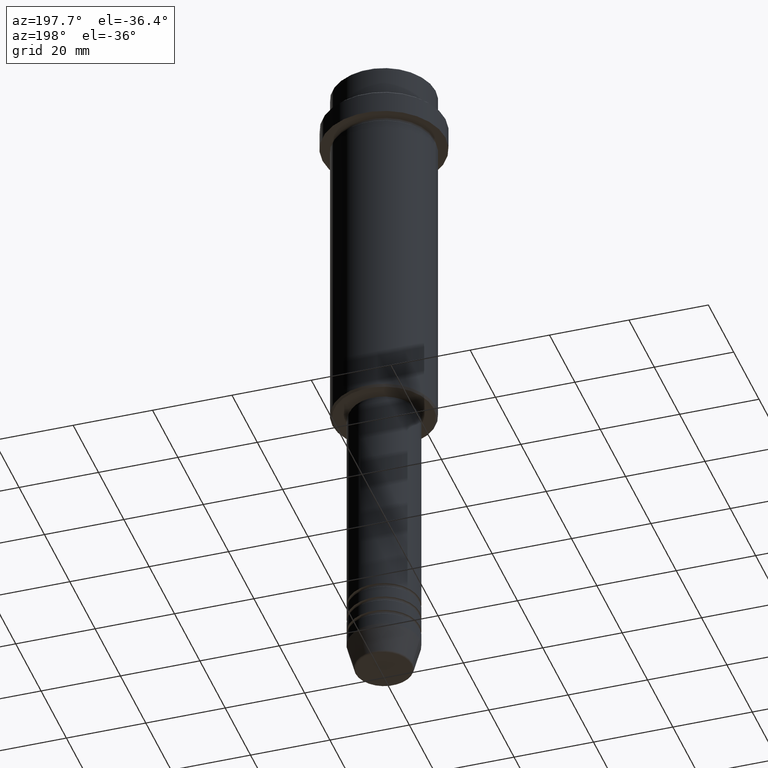
[diagram: clean part render]
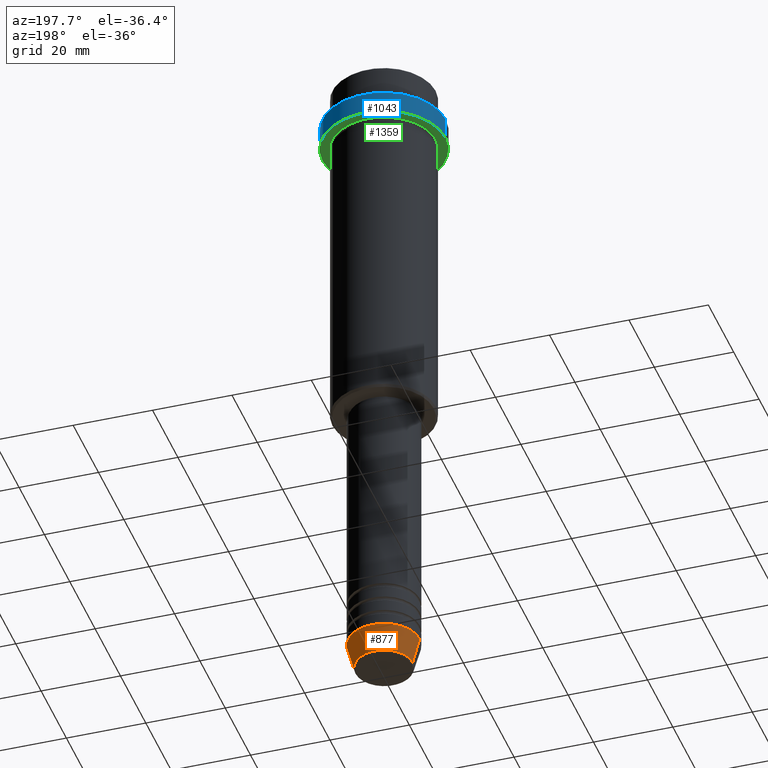
[diagram: same view with three faces highlighted in distinct colors, each labeled with its STEP entity id]
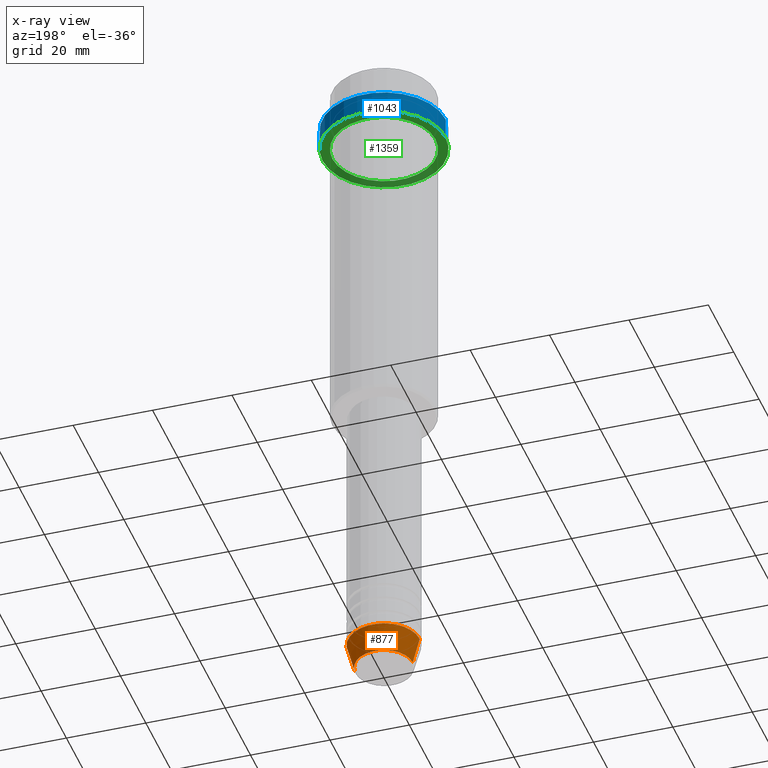
[diagram: x-ray of the same camera — body ghosted, the three highlighted faces saturated]
A machine part, auxiliary view with three faces highlighted in distinct colors.
The next image is the same camera in x-ray (body ghosted, the three faces saturated) — at least one of them is partly hidden behind the body in this view.
Their STEP definitions:

[orange] entity #877 — the highlighted conical surface has half-angle 15 deg.
#16 = LINE ( 'NONE', #592, #960 ) ;
#22 = ORIENTED_EDGE ( 'NONE', *, *, #950, .F. ) ;
#30 = CONICAL_SURFACE ( 'NONE', #1281, 9.000000000000000000, 0.2617993877991500740 ) ;
#44 = VERTEX_POINT ( 'NONE', #1249 ) ;
#71 = DIRECTION ( 'NONE',  ( -0.000000000000000000, -0.000000000000000000, 1.000000000000000000 ) ) ;
#215 = VERTEX_POINT ( 'NONE', #1181 ) ;
#274 = CARTESIAN_POINT ( 'NONE',  ( 0.000000000000000000, 0.000000000000000000, -169.6294095225512706 ) ) ;
#277 = AXIS2_PLACEMENT_3D ( 'NONE', #498, #941, #1378 ) ;
#303 = DIRECTION ( 'NONE',  ( -0.000000000000000000, -0.000000000000000000, 1.000000000000000000 ) ) ;
#367 = CARTESIAN_POINT ( 'NONE',  ( 7.223655072137196598, 0.000000000000000000, -169.6294095225512706 ) ) ;
#374 = EDGE_CURVE ( 'NONE', #44, #215, #562, .T. ) ;
#411 = DIRECTION ( 'NONE',  ( 1.000000000000000000, 0.000000000000000000, 0.000000000000000000 ) ) ;
#427 = ORIENTED_EDGE ( 'NONE', *, *, #1117, .T. ) ;
#439 = DIRECTION ( 'NONE',  ( -0.2588190451025213501, 3.169619151431772337E-17, 0.9659258262890680902 ) ) ;
#498 = CARTESIAN_POINT ( 'NONE',  ( 0.000000000000000000, 0.000000000000000000, -163.0000000000000000 ) ) ;
#544 = AXIS2_PLACEMENT_3D ( 'NONE', #274, #71, #946 ) ;
#562 = LINE ( 'NONE', #685, #1123 ) ;
#592 = CARTESIAN_POINT ( 'NONE',  ( 9.000000000000000000, 0.000000000000000000, -163.0000000000000000 ) ) ;
#685 = CARTESIAN_POINT ( 'NONE',  ( -9.000000000000000000, 1.102182119232617714E-15, -163.0000000000000000 ) ) ;
#742 = ORIENTED_EDGE ( 'NONE', *, *, #1075, .F. ) ;
#796 = VERTEX_POINT ( 'NONE', #1174 ) ;
#877 = ADVANCED_FACE ( 'NONE', ( #978 ), #30, .T. ) ;
#882 = DIRECTION ( 'NONE',  ( 0.2588190451025213501, 0.000000000000000000, 0.9659258262890680902 ) ) ;
#941 = DIRECTION ( 'NONE',  ( -0.000000000000000000, -0.000000000000000000, 1.000000000000000000 ) ) ;
#946 = DIRECTION ( 'NONE',  ( 1.000000000000000000, 0.000000000000000000, 0.000000000000000000 ) ) ;
#950 = EDGE_CURVE ( 'NONE', #1356, #796, #16, .T. ) ;
#960 = VECTOR ( 'NONE', #882, 1000.000000000000000 ) ;
#978 = FACE_OUTER_BOUND ( 'NONE', #1329, .T. ) ;
#1075 = EDGE_CURVE ( 'NONE', #796, #215, #1394, .T. ) ;
#1117 = EDGE_CURVE ( 'NONE', #1356, #44, #1169, .T. ) ;
#1123 = VECTOR ( 'NONE', #439, 1000.000000000000000 ) ;
#1169 = CIRCLE ( 'NONE', #544, 7.223655072137196598 ) ;
#1174 = CARTESIAN_POINT ( 'NONE',  ( 9.000000000000000000, 0.000000000000000000, -163.0000000000000000 ) ) ;
#1181 = CARTESIAN_POINT ( 'NONE',  ( -9.000000000000000000, 1.102182119232617714E-15, -163.0000000000000000 ) ) ;
#1249 = CARTESIAN_POINT ( 'NONE',  ( -7.223655072137197486, 9.934123627281769054E-16, -169.6294095225512706 ) ) ;
#1281 = AXIS2_PLACEMENT_3D ( 'NONE', #1416, #303, #411 ) ;
#1285 = ORIENTED_EDGE ( 'NONE', *, *, #374, .T. ) ;
#1329 = EDGE_LOOP ( 'NONE', ( #427, #1285, #742, #22 ) ) ;
#1356 = VERTEX_POINT ( 'NONE', #367 ) ;
#1378 = DIRECTION ( 'NONE',  ( 1.000000000000000000, 0.000000000000000000, 0.000000000000000000 ) ) ;
#1394 = CIRCLE ( 'NONE', #277, 9.000000000000000000 ) ;
#1416 = CARTESIAN_POINT ( 'NONE',  ( 0.000000000000000000, 0.000000000000000000, -163.0000000000000000 ) ) ;

[blue] entity #1043 — the highlighted cylindrical surface (partial cylindrical patch) has radius 15.5 mm, axis along (-0, -0, 1).
#18 = EDGE_CURVE ( 'NONE', #382, #672, #61, .T. ) ;
#24 = CARTESIAN_POINT ( 'NONE',  ( -15.50000000000000000, 1.898202538678397557E-15, -15.00000000000000000 ) ) ;
#29 = CARTESIAN_POINT ( 'NONE',  ( 15.50000000000000000, 0.000000000000000000, -15.00000000000000000 ) ) ;
#61 = LINE ( 'NONE', #486, #1207 ) ;
#94 = DIRECTION ( 'NONE',  ( 0.000000000000000000, 0.000000000000000000, -1.000000000000000000 ) ) ;
#155 = DIRECTION ( 'NONE',  ( -0.000000000000000000, -0.000000000000000000, 1.000000000000000000 ) ) ;
#159 = EDGE_CURVE ( 'NONE', #382, #535, #272, .T. ) ;
#167 = AXIS2_PLACEMENT_3D ( 'NONE', #515, #94, #954 ) ;
#221 = CARTESIAN_POINT ( 'NONE',  ( -15.50000000000000000, 1.898202538678397557E-15, -9.500000000000026645 ) ) ;
#272 = CIRCLE ( 'NONE', #1097, 15.50000000000000000 ) ;
#312 = DIRECTION ( 'NONE',  ( 1.000000000000000000, 0.000000000000000000, 0.000000000000000000 ) ) ;
#315 = VECTOR ( 'NONE', #155, 1000.000000000000000 ) ;
#382 = VERTEX_POINT ( 'NONE', #29 ) ;
#384 = CIRCLE ( 'NONE', #167, 15.50000000000000000 ) ;
#385 = ORIENTED_EDGE ( 'NONE', *, *, #603, .T. ) ;
#448 = EDGE_LOOP ( 'NONE', ( #1265, #385, #1221, #1023 ) ) ;
#468 = DIRECTION ( 'NONE',  ( -0.000000000000000000, -0.000000000000000000, 1.000000000000000000 ) ) ;
#486 = CARTESIAN_POINT ( 'NONE',  ( 15.50000000000000000, 0.000000000000000000, 0.000000000000000000 ) ) ;
#515 = CARTESIAN_POINT ( 'NONE',  ( 0.000000000000000000, 0.000000000000000000, -9.500000000000026645 ) ) ;
#535 = VERTEX_POINT ( 'NONE', #24 ) ;
#542 = CARTESIAN_POINT ( 'NONE',  ( 0.000000000000000000, 0.000000000000000000, 0.000000000000000000 ) ) ;
#576 = FACE_OUTER_BOUND ( 'NONE', #448, .T. ) ;
#603 = EDGE_CURVE ( 'NONE', #535, #1007, #1129, .T. ) ;
#672 = VERTEX_POINT ( 'NONE', #1381 ) ;
#705 = AXIS2_PLACEMENT_3D ( 'NONE', #542, #468, #1343 ) ;
#915 = EDGE_CURVE ( 'NONE', #1007, #672, #384, .T. ) ;
#923 = DIRECTION ( 'NONE',  ( -0.000000000000000000, -0.000000000000000000, 1.000000000000000000 ) ) ;
#954 = DIRECTION ( 'NONE',  ( 1.000000000000000000, 0.000000000000000000, 0.000000000000000000 ) ) ;
#1007 = VERTEX_POINT ( 'NONE', #221 ) ;
#1019 = CARTESIAN_POINT ( 'NONE',  ( -15.50000000000000000, 1.898202538678397557E-15, 0.000000000000000000 ) ) ;
#1022 = CYLINDRICAL_SURFACE ( 'NONE', #705, 15.50000000000000000 ) ;
#1023 = ORIENTED_EDGE ( 'NONE', *, *, #18, .F. ) ;
#1043 = ADVANCED_FACE ( 'NONE', ( #576 ), #1022, .T. ) ;
#1097 = AXIS2_PLACEMENT_3D ( 'NONE', #1400, #1194, #312 ) ;
#1129 = LINE ( 'NONE', #1019, #315 ) ;
#1194 = DIRECTION ( 'NONE',  ( -0.000000000000000000, -0.000000000000000000, 1.000000000000000000 ) ) ;
#1207 = VECTOR ( 'NONE', #923, 1000.000000000000000 ) ;
#1221 = ORIENTED_EDGE ( 'NONE', *, *, #915, .T. ) ;
#1265 = ORIENTED_EDGE ( 'NONE', *, *, #159, .T. ) ;
#1343 = DIRECTION ( 'NONE',  ( 1.000000000000000000, 0.000000000000000000, 0.000000000000000000 ) ) ;
#1381 = CARTESIAN_POINT ( 'NONE',  ( 15.50000000000000000, 0.000000000000000000, -9.500000000000026645 ) ) ;
#1400 = CARTESIAN_POINT ( 'NONE',  ( 0.000000000000000000, 0.000000000000000000, -15.00000000000000000 ) ) ;

[green] entity #1359 — the highlighted planar face has unit normal (0, 0, -1).
#10 = EDGE_CURVE ( 'NONE', #1393, #766, #861, .T. ) ;
#24 = CARTESIAN_POINT ( 'NONE',  ( -15.50000000000000000, 1.898202538678397557E-15, -15.00000000000000000 ) ) ;
#29 = CARTESIAN_POINT ( 'NONE',  ( 15.50000000000000000, 0.000000000000000000, -15.00000000000000000 ) ) ;
#40 = DIRECTION ( 'NONE',  ( 0.000000000000000000, 0.000000000000000000, -1.000000000000000000 ) ) ;
#51 = AXIS2_PLACEMENT_3D ( 'NONE', #1226, #1326, #123 ) ;
#52 = DIRECTION ( 'NONE',  ( -1.000000000000000000, 0.000000000000000000, 0.000000000000000000 ) ) ;
#57 = EDGE_CURVE ( 'NONE', #766, #1393, #1368, .T. ) ;
#123 = DIRECTION ( 'NONE',  ( 1.000000000000000000, 0.000000000000000000, 0.000000000000000000 ) ) ;
#136 = FACE_BOUND ( 'NONE', #656, .T. ) ;
#159 = EDGE_CURVE ( 'NONE', #382, #535, #272, .T. ) ;
#272 = CIRCLE ( 'NONE', #1097, 15.50000000000000000 ) ;
#306 = EDGE_CURVE ( 'NONE', #535, #382, #657, .T. ) ;
#312 = DIRECTION ( 'NONE',  ( 1.000000000000000000, 0.000000000000000000, 0.000000000000000000 ) ) ;
#382 = VERTEX_POINT ( 'NONE', #29 ) ;
#500 = CARTESIAN_POINT ( 'NONE',  ( 0.000000000000000000, 0.000000000000000000, -15.00000000000000000 ) ) ;
#535 = VERTEX_POINT ( 'NONE', #24 ) ;
#568 = CARTESIAN_POINT ( 'NONE',  ( 12.99999999999999645, 1.592040838891558701E-15, -15.00000000000000000 ) ) ;
#588 = DIRECTION ( 'NONE',  ( -1.000000000000000000, 0.000000000000000000, -0.000000000000000000 ) ) ;
#594 = AXIS2_PLACEMENT_3D ( 'NONE', #1130, #40, #588 ) ;
#629 = AXIS2_PLACEMENT_3D ( 'NONE', #1159, #826, #52 ) ;
#656 = EDGE_LOOP ( 'NONE', ( #721, #847 ) ) ;
#657 = CIRCLE ( 'NONE', #51, 15.50000000000000000 ) ;
#721 = ORIENTED_EDGE ( 'NONE', *, *, #57, .T. ) ;
#766 = VERTEX_POINT ( 'NONE', #931 ) ;
#778 = ORIENTED_EDGE ( 'NONE', *, *, #159, .F. ) ;
#802 = PLANE ( 'NONE',  #594 ) ;
#820 = EDGE_LOOP ( 'NONE', ( #778, #893 ) ) ;
#826 = DIRECTION ( 'NONE',  ( -0.000000000000000000, -0.000000000000000000, 1.000000000000000000 ) ) ;
#847 = ORIENTED_EDGE ( 'NONE', *, *, #10, .T. ) ;
#861 = CIRCLE ( 'NONE', #629, 12.99999999999999645 ) ;
#893 = ORIENTED_EDGE ( 'NONE', *, *, #306, .F. ) ;
#929 = DIRECTION ( 'NONE',  ( -1.000000000000000000, 0.000000000000000000, 0.000000000000000000 ) ) ;
#931 = CARTESIAN_POINT ( 'NONE',  ( -12.99999999999999645, 0.000000000000000000, -15.00000000000000000 ) ) ;
#1097 = AXIS2_PLACEMENT_3D ( 'NONE', #1400, #1194, #312 ) ;
#1120 = FACE_OUTER_BOUND ( 'NONE', #820, .T. ) ;
#1130 = CARTESIAN_POINT ( 'NONE',  ( 0.000000000000000000, 15.50000000000000000, -15.00000000000000000 ) ) ;
#1159 = CARTESIAN_POINT ( 'NONE',  ( 0.000000000000000000, 0.000000000000000000, -15.00000000000000000 ) ) ;
#1194 = DIRECTION ( 'NONE',  ( -0.000000000000000000, -0.000000000000000000, 1.000000000000000000 ) ) ;
#1226 = CARTESIAN_POINT ( 'NONE',  ( 0.000000000000000000, 0.000000000000000000, -15.00000000000000000 ) ) ;
#1274 = AXIS2_PLACEMENT_3D ( 'NONE', #500, #1363, #929 ) ;
#1326 = DIRECTION ( 'NONE',  ( -0.000000000000000000, -0.000000000000000000, 1.000000000000000000 ) ) ;
#1359 = ADVANCED_FACE ( 'NONE', ( #136, #1120 ), #802, .T. ) ;
#1363 = DIRECTION ( 'NONE',  ( -0.000000000000000000, -0.000000000000000000, 1.000000000000000000 ) ) ;
#1368 = CIRCLE ( 'NONE', #1274, 12.99999999999999645 ) ;
#1393 = VERTEX_POINT ( 'NONE', #568 ) ;
#1400 = CARTESIAN_POINT ( 'NONE',  ( 0.000000000000000000, 0.000000000000000000, -15.00000000000000000 ) ) ;